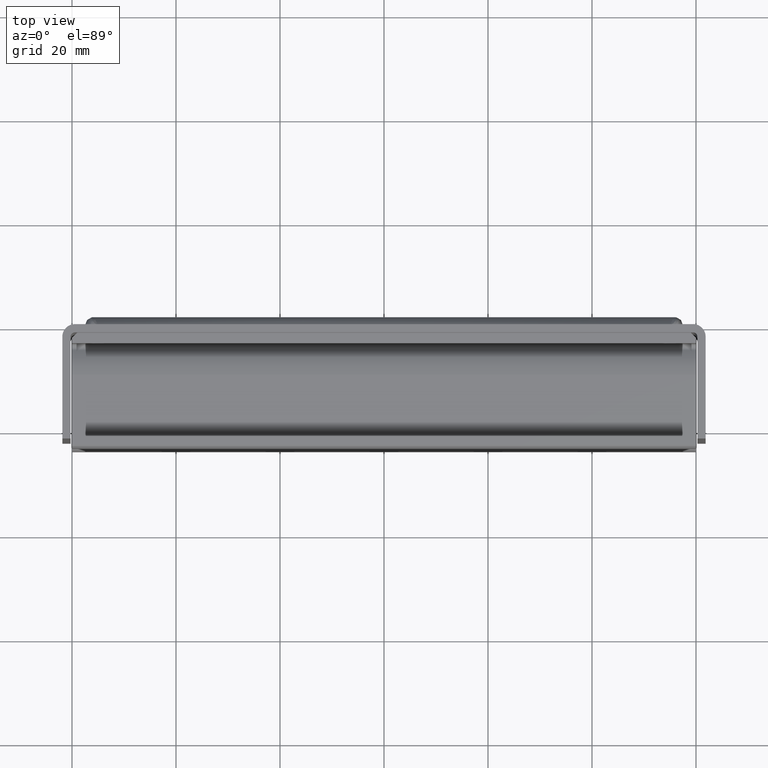
[diagram: clean part render]
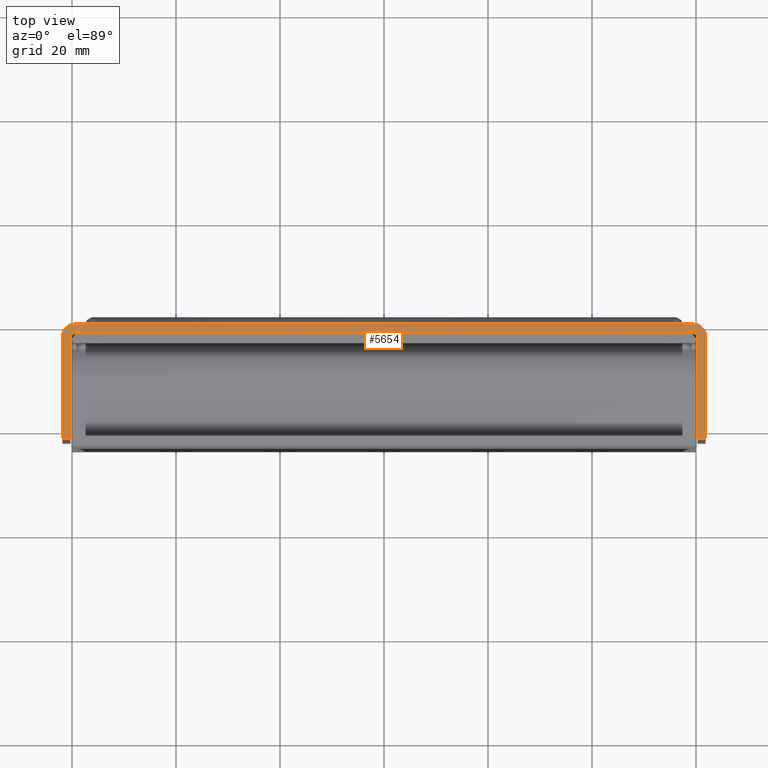
[diagram: same view with one face highlighted and labeled with its STEP entity id]
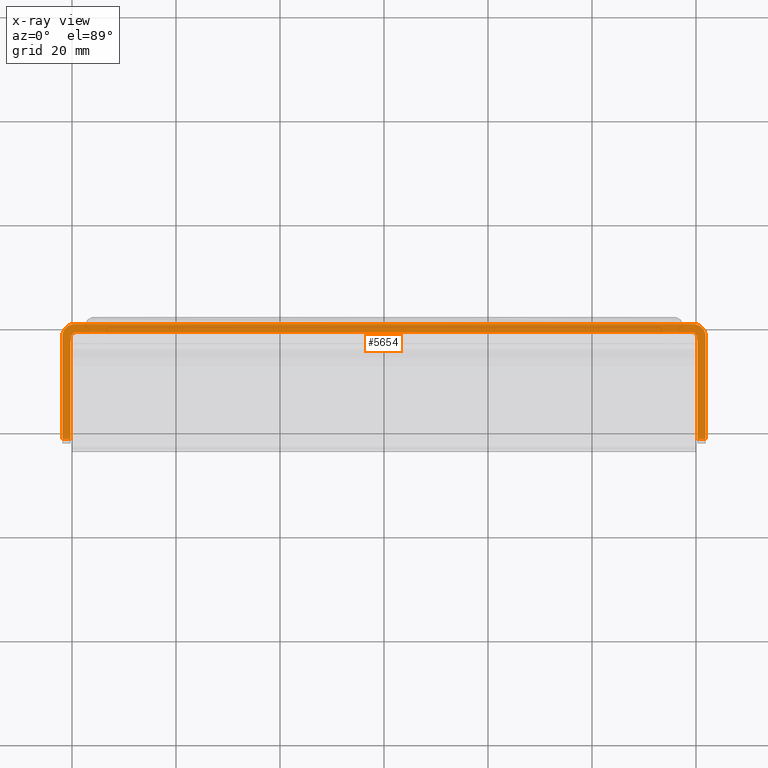
[diagram: x-ray of the same camera — body ghosted, the highlighted face saturated]
A machine part, top view. The second image highlights one B-rep face of the part: STEP entity #5654.
The next image is the same camera in x-ray: the body ghosted, the highlighted face saturated — about 0% of this face is hidden behind the body in this view.
In plain terms, the highlighted face is a freeform B-spline surface patch.
Its self-contained STEP definition (entity closure, byte-faithful):
#5531=CARTESIAN_POINT('',(-68.028813157095016,1.098899957359721,29.0));
#5532=CARTESIAN_POINT('',(68.028808733238293,1.098899957359721,29.0));
#5533=CARTESIAN_POINT('',(-68.028813157095030,-23.098900547445709,29.0));
#5534=CARTESIAN_POINT('',(68.028808733238293,-23.098900547445709,29.0));
#5535=B_SPLINE_SURFACE_WITH_KNOTS('',1,1,((#5531,#5533),(#5532,#5534)),.UNSPECIFIED.,.F.,.F.,.U.,(2,2),(2,2),(0.0,136.057621890333310),(0.0,24.197800504805429),.UNSPECIFIED.);
#5536=CARTESIAN_POINT('',(-59.450000000000003,-1.421085E-014,29.0));
#5537=VERTEX_POINT('',#5536);
#5538=CARTESIAN_POINT('',(-61.850000000000001,-2.400000000000000,29.0));
#5539=VERTEX_POINT('',#5538);
#5540=CARTESIAN_POINT('',(-59.450000000000003,0.0,29.0));
#5541=CARTESIAN_POINT('',(-61.849999999999994,0.0,29.000000000000007));
#5542=CARTESIAN_POINT('',(-61.850000000000001,-2.400000000000000,29.0));
#5550=(BOUNDED_CURVE()B_SPLINE_CURVE(2,(#5540,#5541,#5542),.UNSPECIFIED.,.F.,.U.)CURVE()GEOMETRIC_REPRESENTATION_ITEM()QUASI_UNIFORM_CURVE()RATIONAL_B_SPLINE_CURVE((1.0,0.707106781186547,1.0))REPRESENTATION_ITEM(''));
#5551=EDGE_CURVE('',#5537,#5539,#5550,.T.);
#5552=ORIENTED_EDGE('',*,*,#5551,.T.);
#5553=CARTESIAN_POINT('',(-61.850000000000001,-22.0,29.0));
#5554=VERTEX_POINT('',#5553);
#5555=CARTESIAN_POINT('',(-61.850000000000001,-2.400000000000000,29.0));
#5556=CARTESIAN_POINT('',(-61.850000000000001,-22.0,29.0));
#5557=QUASI_UNIFORM_CURVE('',1,(#5555,#5556),.UNSPECIFIED.,.F.,.U.);
#5558=EDGE_CURVE('',#5539,#5554,#5557,.T.);
#5559=ORIENTED_EDGE('',*,*,#5558,.T.);
#5560=CARTESIAN_POINT('',(-60.250000000000000,-22.0,29.0));
#5561=VERTEX_POINT('',#5560);
#5562=CARTESIAN_POINT('',(-61.850000000000001,-22.0,29.0));
#5563=CARTESIAN_POINT('',(-60.250000000000000,-22.0,29.0));
#5564=QUASI_UNIFORM_CURVE('',1,(#5562,#5563),.UNSPECIFIED.,.F.,.U.);
#5565=EDGE_CURVE('',#5554,#5561,#5564,.T.);
#5566=ORIENTED_EDGE('',*,*,#5565,.T.);
#5567=CARTESIAN_POINT('',(-60.250000000000000,-2.400000000000000,29.0));
#5568=VERTEX_POINT('',#5567);
#5569=CARTESIAN_POINT('',(-60.250000000000000,-22.0,29.0));
#5570=CARTESIAN_POINT('',(-60.250000000000000,-2.400000000000000,29.0));
#5571=QUASI_UNIFORM_CURVE('',1,(#5569,#5570),.UNSPECIFIED.,.F.,.U.);
#5572=EDGE_CURVE('',#5561,#5568,#5571,.T.);
#5573=ORIENTED_EDGE('',*,*,#5572,.T.);
#5574=CARTESIAN_POINT('',(-59.450000000000003,-1.600000000000000,29.0));
#5575=VERTEX_POINT('',#5574);
#5576=CARTESIAN_POINT('',(-59.450000000000003,-1.600000000000000,29.0));
#5577=CARTESIAN_POINT('',(-60.250000000000007,-1.600000000000000,29.0));
#5578=CARTESIAN_POINT('',(-60.250000000000007,-2.400000000000000,29.0));
#5586=(BOUNDED_CURVE()B_SPLINE_CURVE(2,(#5576,#5577,#5578),.UNSPECIFIED.,.F.,.U.)CURVE()GEOMETRIC_REPRESENTATION_ITEM()QUASI_UNIFORM_CURVE()RATIONAL_B_SPLINE_CURVE((1.0,0.707106781186548,1.0))REPRESENTATION_ITEM(''));
#5587=EDGE_CURVE('',#5575,#5568,#5586,.T.);
#5588=ORIENTED_EDGE('',*,*,#5587,.F.);
#5589=CARTESIAN_POINT('',(59.450000000000003,-1.600000000000000,29.0));
#5590=VERTEX_POINT('',#5589);
#5591=CARTESIAN_POINT('',(-59.450000000000003,-1.600000000000000,29.0));
#5592=CARTESIAN_POINT('',(59.450000000000003,-1.600000000000000,29.0));
#5593=QUASI_UNIFORM_CURVE('',1,(#5591,#5592),.UNSPECIFIED.,.F.,.U.);
#5594=EDGE_CURVE('',#5575,#5590,#5593,.T.);
#5595=ORIENTED_EDGE('',*,*,#5594,.T.);
#5596=CARTESIAN_POINT('',(60.250000000000000,-2.400000000000000,29.0));
#5597=VERTEX_POINT('',#5596);
#5598=CARTESIAN_POINT('',(60.250000000000007,-2.400000000000000,29.0));
#5599=CARTESIAN_POINT('',(60.250000000000007,-1.600000000000000,29.0));
#5600=CARTESIAN_POINT('',(59.450000000000003,-1.600000000000000,29.0));
#5608=(BOUNDED_CURVE()B_SPLINE_CURVE(2,(#5598,#5599,#5600),.UNSPECIFIED.,.F.,.U.)CURVE()GEOMETRIC_REPRESENTATION_ITEM()QUASI_UNIFORM_CURVE()RATIONAL_B_SPLINE_CURVE((1.0,0.707106781186548,1.0))REPRESENTATION_ITEM(''));
#5609=EDGE_CURVE('',#5597,#5590,#5608,.T.);
#5610=ORIENTED_EDGE('',*,*,#5609,.F.);
#5611=CARTESIAN_POINT('',(60.250000000000000,-22.0,29.0));
#5612=VERTEX_POINT('',#5611);
#5613=CARTESIAN_POINT('',(60.250000000000000,-2.400000000000000,29.0));
#5614=CARTESIAN_POINT('',(60.250000000000000,-22.0,29.0));
#5615=QUASI_UNIFORM_CURVE('',1,(#5613,#5614),.UNSPECIFIED.,.F.,.U.);
#5616=EDGE_CURVE('',#5597,#5612,#5615,.T.);
#5617=ORIENTED_EDGE('',*,*,#5616,.T.);
#5618=CARTESIAN_POINT('',(61.850000000000001,-22.0,29.0));
#5619=VERTEX_POINT('',#5618);
#5620=CARTESIAN_POINT('',(60.250000000000000,-22.0,29.0));
#5621=CARTESIAN_POINT('',(61.850000000000001,-22.0,29.0));
#5622=QUASI_UNIFORM_CURVE('',1,(#5620,#5621),.UNSPECIFIED.,.F.,.U.);
#5623=EDGE_CURVE('',#5612,#5619,#5622,.T.);
#5624=ORIENTED_EDGE('',*,*,#5623,.T.);
#5625=CARTESIAN_POINT('',(61.850000000000001,-2.400000000000000,29.0));
#5626=VERTEX_POINT('',#5625);
#5627=CARTESIAN_POINT('',(61.850000000000001,-22.0,29.0));
#5628=CARTESIAN_POINT('',(61.850000000000001,-2.400000000000000,29.0));
#5629=QUASI_UNIFORM_CURVE('',1,(#5627,#5628),.UNSPECIFIED.,.F.,.U.);
#5630=EDGE_CURVE('',#5619,#5626,#5629,.T.);
#5631=ORIENTED_EDGE('',*,*,#5630,.T.);
#5632=CARTESIAN_POINT('',(59.450000000000003,-7.105427E-015,29.0));
#5633=VERTEX_POINT('',#5632);
#5634=CARTESIAN_POINT('',(61.850000000000001,-2.400000000000000,29.0));
#5635=CARTESIAN_POINT('',(61.849999999999994,0.0,29.000000000000007));
#5636=CARTESIAN_POINT('',(59.450000000000003,0.0,29.0));
#5644=(BOUNDED_CURVE()B_SPLINE_CURVE(2,(#5634,#5635,#5636),.UNSPECIFIED.,.F.,.U.)CURVE()GEOMETRIC_REPRESENTATION_ITEM()QUASI_UNIFORM_CURVE()RATIONAL_B_SPLINE_CURVE((1.0,0.707106781186547,1.0))REPRESENTATION_ITEM(''));
#5645=EDGE_CURVE('',#5626,#5633,#5644,.T.);
#5646=ORIENTED_EDGE('',*,*,#5645,.T.);
#5647=CARTESIAN_POINT('',(59.450000000000003,-7.105427E-015,29.0));
#5648=CARTESIAN_POINT('',(-59.450000000000003,-1.421085E-014,29.0));
#5649=QUASI_UNIFORM_CURVE('',1,(#5647,#5648),.UNSPECIFIED.,.F.,.U.);
#5650=EDGE_CURVE('',#5633,#5537,#5649,.T.);
#5651=ORIENTED_EDGE('',*,*,#5650,.T.);
#5652=EDGE_LOOP('',(#5552,#5559,#5566,#5573,#5588,#5595,#5610,#5617,#5624,#5631,#5646,#5651));
#5653=FACE_OUTER_BOUND('',#5652,.T.);
#5654=ADVANCED_FACE('',(#5653),#5535,.F.);